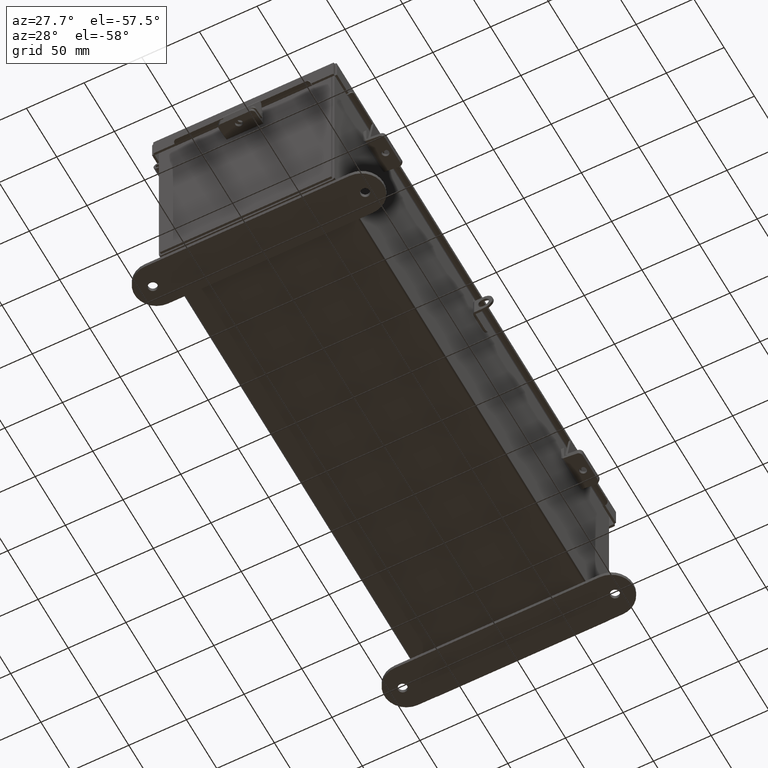
[diagram: clean part render]
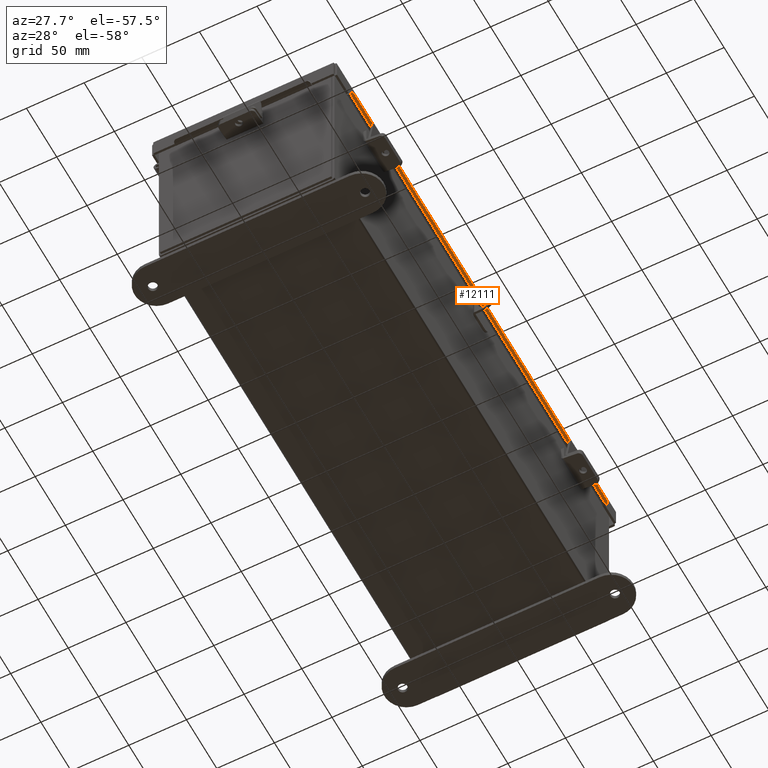
[diagram: same view with one face highlighted and labeled with its STEP entity id]
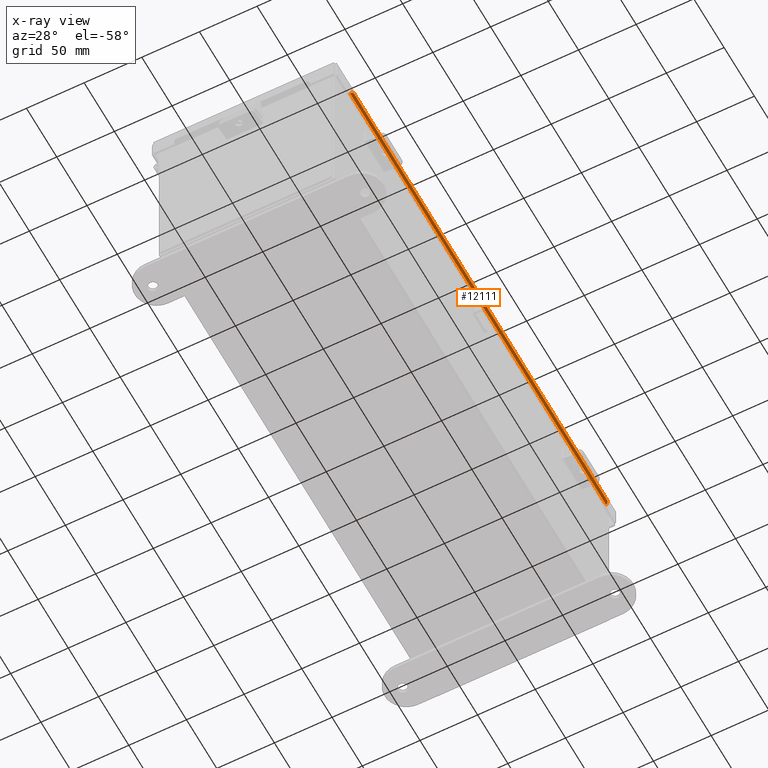
[diagram: x-ray of the same camera — body ghosted, the highlighted face saturated]
A machine part, auxiliary view. The second image highlights one B-rep face of the part: STEP entity #12111.
The next image is the same camera in x-ray: the body ghosted, the highlighted face saturated — about 0% of this face is hidden behind the body in this view.
In plain terms, the highlighted planar face has unit normal (-0.5, 0, 0.866).
Its self-contained STEP definition (entity closure, byte-faithful):
#56 = VERTEX_POINT ( 'NONE', #11871 ) ;
#110 = LINE ( 'NONE', #7421, #15249 ) ;
#430 = AXIS2_PLACEMENT_3D ( 'NONE', #1761, #12027, #3231 ) ;
#657 = ORIENTED_EDGE ( 'NONE', *, *, #14984, .T. ) ;
#1017 = CARTESIAN_POINT ( 'NONE',  ( -1.091546177368617000, 0.0000000000000000000, 1.890613438010017200 ) ) ;
#1630 = VECTOR ( 'NONE', #10109, 39.37007874015748100 ) ;
#1742 = FACE_OUTER_BOUND ( 'NONE', #9576, .T. ) ;
#1761 = CARTESIAN_POINT ( 'NONE',  ( -3.211453810567678400, -8.224478932188123500, 0.6666841953253943600 ) ) ;
#2479 = DIRECTION ( 'NONE',  ( -0.8660254037844378200, 2.352716020063439200E-029, -0.5000000000000015500 ) ) ;
#2532 = ORIENTED_EDGE ( 'NONE', *, *, #7264, .T. ) ;
#2550 = VERTEX_POINT ( 'NONE', #14531 ) ;
#3231 = DIRECTION ( 'NONE',  ( -0.8660254037844380400, 0.0000000000000000000, -0.5000000000000010000 ) ) ;
#3564 = CARTESIAN_POINT ( 'NONE',  ( -3.211453810567678400, -8.324478932188123200, 0.6666841953253943600 ) ) ;
#3738 = DIRECTION ( 'NONE',  ( -0.5000000000000014400, 3.352658847189288400E-029, 0.8660254037844377100 ) ) ;
#5273 = VECTOR ( 'NONE', #5441, 39.37007874015747400 ) ;
#5441 = DIRECTION ( 'NONE',  ( -0.8660254037844374900, 2.335151538970627900E-029, -0.5000000000000021100 ) ) ;
#5460 = AXIS2_PLACEMENT_3D ( 'NONE', #12532, #3738, #14029 ) ;
#5462 = VERTEX_POINT ( 'NONE', #17148 ) ;
#6856 = LINE ( 'NONE', #13829, #18087 ) ;
#7264 = EDGE_CURVE ( 'NONE', #2550, #13524, #16971, .T. ) ;
#7421 = CARTESIAN_POINT ( 'NONE',  ( -3.193600000000008400, -8.324478932188123200, 0.6769920976626966300 ) ) ;
#7896 = CARTESIAN_POINT ( 'NONE',  ( -3.211453810567678400, 8.324478932188140900, 0.6666841953253943600 ) ) ;
#8100 = ORIENTED_EDGE ( 'NONE', *, *, #18793, .T. ) ;
#8335 = AXIS2_PLACEMENT_3D ( 'NONE', #1017, #11259, #2479 ) ;
#8633 = CARTESIAN_POINT ( 'NONE',  ( -3.298056350946121800, -8.324478932188123200, 0.6166841953254023100 ) ) ;
#8702 = CIRCLE ( 'NONE', #5460, 0.1000000000000003800 ) ;
#9576 = EDGE_LOOP ( 'NONE', ( #657, #16712, #8100, #15593, #2532, #9755 ) ) ;
#9755 = ORIENTED_EDGE ( 'NONE', *, *, #16026, .T. ) ;
#9759 = PLANE ( 'NONE',  #8335 ) ;
#9852 = LINE ( 'NONE', #8633, #1630 ) ;
#9978 = VERTEX_POINT ( 'NONE', #3564 ) ;
#10109 = DIRECTION ( 'NONE',  ( 3.675400233576648500E-029, -1.000000000000000000, -1.735493991486226000E-029 ) ) ;
#10208 = VERTEX_POINT ( 'NONE', #13000 ) ;
#10904 = DIRECTION ( 'NONE',  ( 6.724337563391663600E-017, -1.000000000000000000, 3.882298102342227500E-017 ) ) ;
#11259 = DIRECTION ( 'NONE',  ( 0.5000000000000015500, -3.352658847189288400E-029, -0.8660254037844378200 ) ) ;
#11871 = CARTESIAN_POINT ( 'NONE',  ( -3.298056350946121800, 8.224478932188141300, 0.6166841953253935400 ) ) ;
#11881 = DIRECTION ( 'NONE',  ( 0.8660254037844378200, -2.352716020063439500E-029, 0.5000000000000015500 ) ) ;
#12027 = DIRECTION ( 'NONE',  ( -0.5000000000000014400, 3.352658847189288400E-029, 0.8660254037844377100 ) ) ;
#12111 = ADVANCED_FACE ( 'NONE', ( #1742 ), #9759, .F. ) ;
#12532 = CARTESIAN_POINT ( 'NONE',  ( -3.211453810567678400, 8.224478932188141300, 0.6666841953253943600 ) ) ;
#13000 = CARTESIAN_POINT ( 'NONE',  ( -3.298056350946121800, -8.224478932188123500, 0.6166841953254023100 ) ) ;
#13524 = VERTEX_POINT ( 'NONE', #7896 ) ;
#13829 = CARTESIAN_POINT ( 'NONE',  ( -3.207100000000012900, -1.899488058094683000E-016, 0.6691978690286443100 ) ) ;
#14029 = DIRECTION ( 'NONE',  ( -0.8660254037844380400, 0.0000000000000000000, -0.5000000000000010000 ) ) ;
#14531 = CARTESIAN_POINT ( 'NONE',  ( -3.207100000000013400, 8.324478932188140900, 0.6691978690286366500 ) ) ;
#14606 = EDGE_CURVE ( 'NONE', #10208, #9978, #15843, .T. ) ;
#14984 = EDGE_CURVE ( 'NONE', #56, #10208, #9852, .T. ) ;
#15249 = VECTOR ( 'NONE', #11881, 39.37007874015747400 ) ;
#15593 = ORIENTED_EDGE ( 'NONE', *, *, #16643, .F. ) ;
#15707 = CARTESIAN_POINT ( 'NONE',  ( -3.298056350946121800, 8.324478932188140900, 0.6166841953253935400 ) ) ;
#15843 = CIRCLE ( 'NONE', #430, 0.1000000000000003800 ) ;
#16026 = EDGE_CURVE ( 'NONE', #13524, #56, #8702, .T. ) ;
#16643 = EDGE_CURVE ( 'NONE', #2550, #5462, #6856, .T. ) ;
#16712 = ORIENTED_EDGE ( 'NONE', *, *, #14606, .T. ) ;
#16971 = LINE ( 'NONE', #15707, #5273 ) ;
#17148 = CARTESIAN_POINT ( 'NONE',  ( -3.207100000000013800, -8.324478932188121400, 0.6691978690286366500 ) ) ;
#18087 = VECTOR ( 'NONE', #10904, 39.37007874015748100 ) ;
#18793 = EDGE_CURVE ( 'NONE', #9978, #5462, #110, .T. ) ;